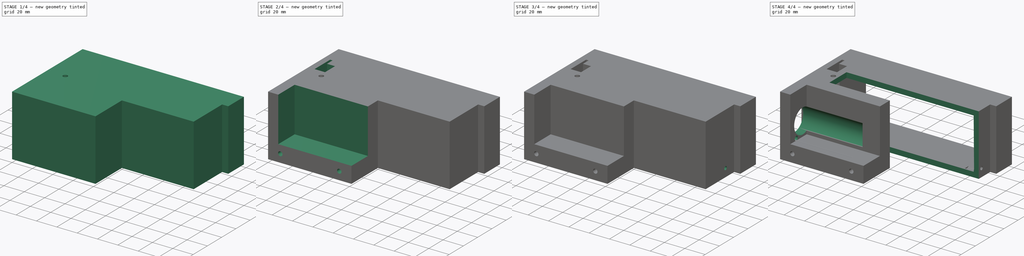
[diagram: build sequence overview — one tinted view per stage of 4, left to right]
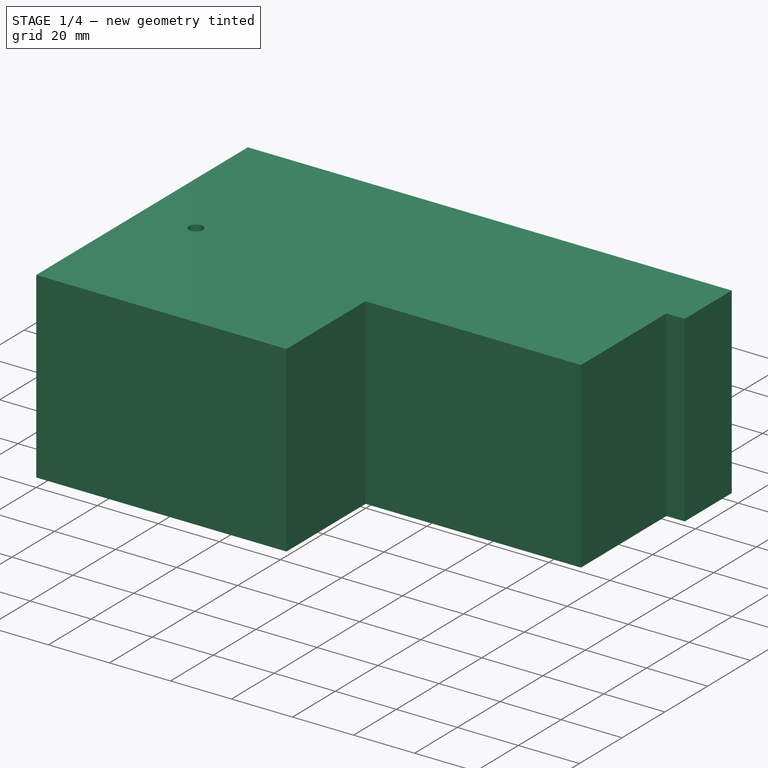
[diagram: stage 1 of 4 — iso view after this stage's code; geometry added in this stage tinted green]
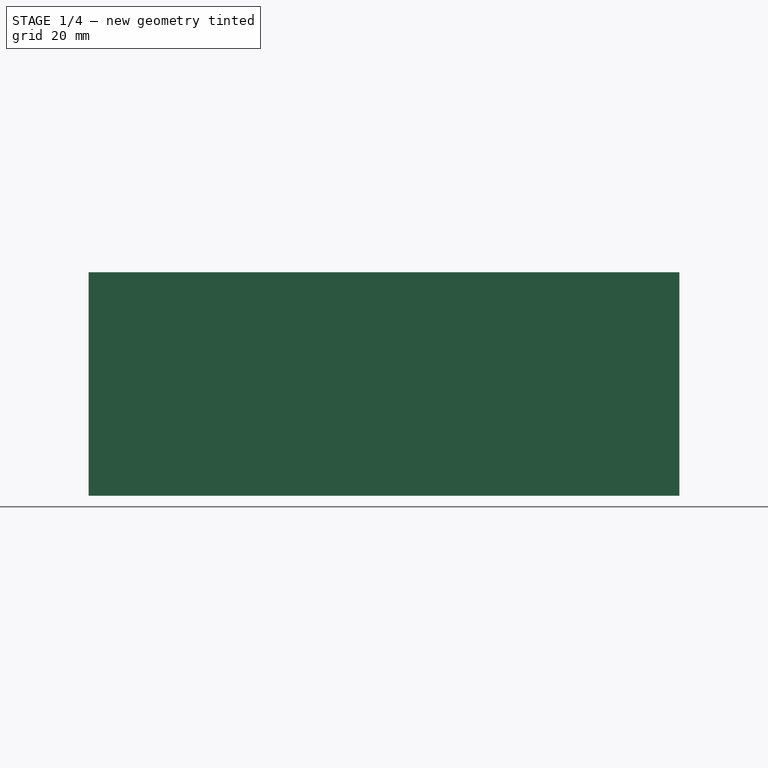
[diagram: stage 1 of 4 — front view after this stage's code; geometry added in this stage tinted green]
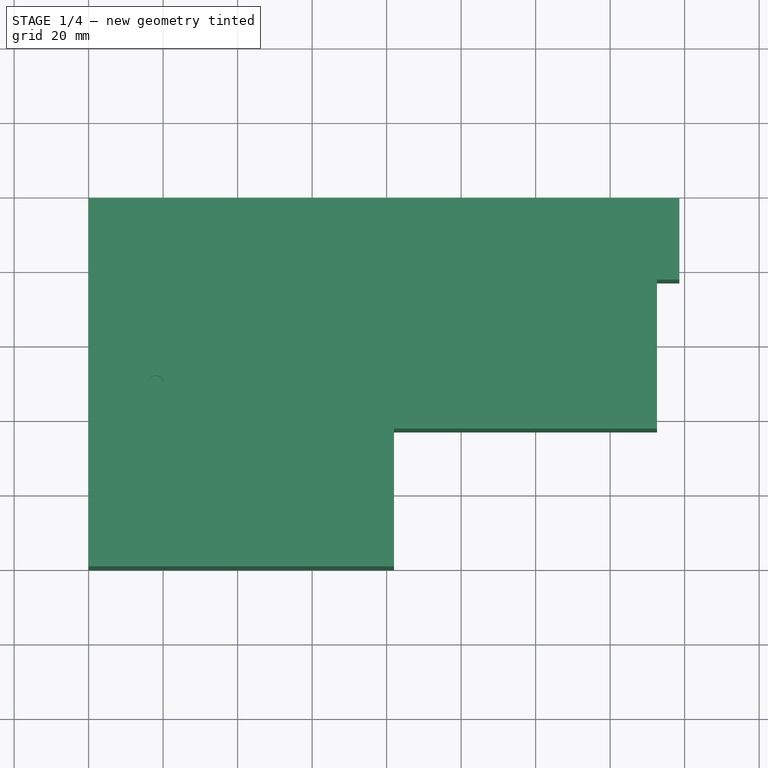
[diagram: stage 1 of 4 — top view after this stage's code; geometry added in this stage tinted green]
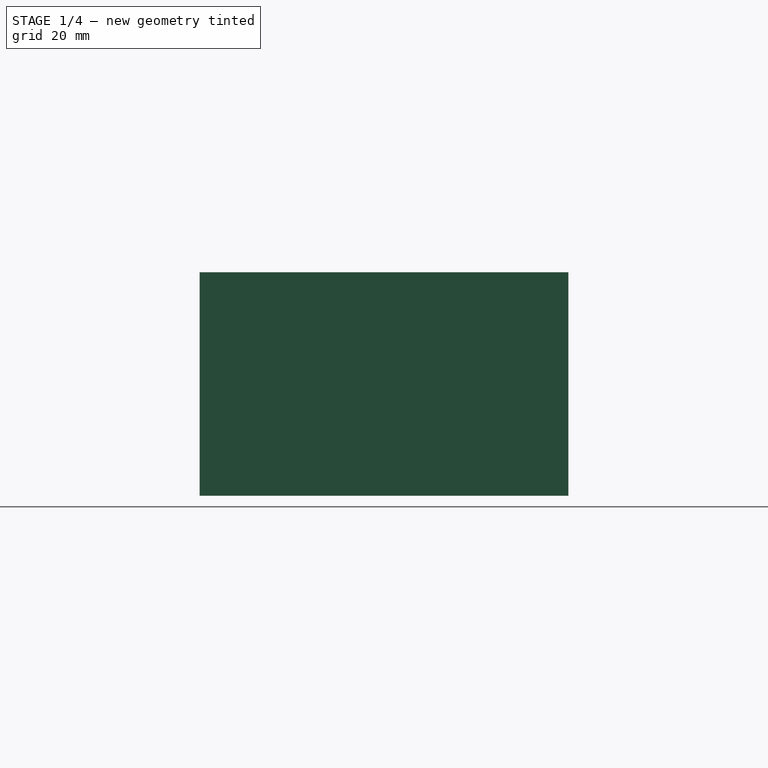
[diagram: stage 1 of 4 — right view after this stage's code; geometry added in this stage tinted green]
FCSTD DOCUMENT  (FreeCAD 0.21R33668 +7 (Git))
Label: speakerbox
License: All rights reserved
LicenseURL: http://en.wikipedia.org/wiki/All_rights_reserved
objects: Sketcher::SketchObject×12, PartDesign::Pocket×11, PartDesign::Plane×3, PartDesign::Pad×1, PartDesign::CoordinateSystem×1, PartDesign::Body×1, App::Part×1
note: 41 computed .brp shape members not serialized (recipe doc carries the construction recipe); baked Part::Feature solids carry a one-line shape summary decoded from their .brp
EXTERNAL_REF file=planB.FCStd obj=Spreadsheet

FEATURE [Sketcher::SketchObject] Sketch
  FullyConstrained = true
  MapMode = 5
  Support = -> [XY_Plane]
  expr: Constraints[13] = planB#<<data>>.central_h + planB#<<data>>.mungo_d + 2
  sketch-geometry (8):
    g0: LineSegment StartX=0 StartY=0 StartZ=0 EndX=82 EndY=0 EndZ=0
    g1: LineSegment StartX=158.6 StartY=99 StartZ=0 EndX=0 EndY=99 EndZ=0
    g2: LineSegment StartX=0 StartY=99 StartZ=0 EndX=0 EndY=0 EndZ=0
    g3: LineSegment StartX=82 StartY=0 StartZ=0 EndX=82 EndY=37 EndZ=0
    g4: LineSegment StartX=82 StartY=37 StartZ=0 EndX=152.6 EndY=37 EndZ=0
    g5: LineSegment StartX=152.6 StartY=37 StartZ=0 EndX=152.6 EndY=77 EndZ=0
    g6: LineSegment StartX=152.6 StartY=77 StartZ=0 EndX=158.6 EndY=77 EndZ=0
    g7: LineSegment StartX=158.6 StartY=77 StartZ=0 EndX=158.6 EndY=99 EndZ=0
  constraints (23):
    c: Coincident(g0,g3)
    c: Coincident(g7,g1)
    c: Coincident(g1,g2)
    c: Coincident(g2,g0)
    c: Horizontal(g0)
    c: Horizontal(g1)
    c: Vertical(g2)
    c: Coincident(g0,g-1)
    c: Coincident(g3,g4)
    c: Vertical(g3)
    c: Coincident(g4,g5)
    c: Horizontal(g4)
    c: Distance(g3) = 37
    c: Distance(g0) = 82
    c: DistanceX(g4) = 152.6
    c: Coincident(g5,g6)
    c: Vertical(g5)
    c: Coincident(g6,g7)
    c: Vertical(g7)
    c: Horizontal(g6)
    c: Distance(g6) = 6
    c: Distance(g7) = 22
    c: DistanceY(g2,g2) = 99
FEATURE [PartDesign::Pad] Pad
  Direction = (0,0,1)
  Length = 60
  Length2 = 10
  Profile = -> Sketch
  ReferenceAxis = -> Sketch [N_Axis]
  Type = 0
  expr: Length = planB#<<data>>.speaker_w
FEATURE [PartDesign::Plane] DatumPlane
  AttachmentOffset = pos=(0,0,5) rot=(0,0,1;0rad)
  Length = 60
  MapMode = 2
  Placement = pos=(0,0,5) rot=(0,0,1;0rad)
  ResizeMode = 0
  Support = -> [XY_Plane]
  Width = 60
  expr: .AttachmentOffset.Base.z = planB#<<data>>.base_t
FEATURE [Sketcher::SketchObject] Sketch001
  FullyConstrained = false
  MapMode = 5
  Placement = pos=(0,0,5) rot=(0,0,1;0rad)
  Support = -> [DatumPlane]
  expr: Constraints[7] = planB#<<data>>.base_t * 2
  expr: Constraints[8] = planB#<<data>>.base_t
  sketch-geometry (18):
    g0: LineSegment StartX=5 StartY=129.209 StartZ=0 EndX=153.6 EndY=129.209 EndZ=0
    g1: LineSegment StartX=77 StartY=42 StartZ=0 EndX=77 EndY=5 EndZ=0
    g2: LineSegment StartX=77 StartY=5 StartZ=0 EndX=10 EndY=5 EndZ=0
    g3: LineSegment StartX=153.6 StartY=129.209 StartZ=0 EndX=153.6 EndY=92 EndZ=0
    g4: LineSegment StartX=153.6 StartY=92 StartZ=0 EndX=143.6 EndY=92 EndZ=0
    g5: LineSegment StartX=5 StartY=92 StartZ=0 EndX=5 EndY=129.209 EndZ=0
    g6: LineSegment StartX=20 StartY=92 StartZ=0 EndX=5 EndY=92 EndZ=0
    g7: LineSegment StartX=10 StartY=52 StartZ=0 EndX=20 EndY=55 EndZ=0
    g8: LineSegment StartX=20 StartY=55 StartZ=0 EndX=20 EndY=92 EndZ=0
    g9: LineSegment StartX=147.6 StartY=82.69 StartZ=0 EndX=147.6 EndY=42 EndZ=0
    g10: LineSegment StartX=143.6 StartY=92 StartZ=0 EndX=143.6 EndY=85 EndZ=0
    g11: LineSegment StartX=143.6 StartY=85 StartZ=0 EndX=147.6 EndY=82.69 EndZ=0
    g12: LineSegment StartX=10 StartY=5 StartZ=0 EndX=10 EndY=42 EndZ=0
    g13: LineSegment StartX=10 StartY=42 StartZ=0 EndX=10 EndY=42 EndZ=0
    g14: LineSegment StartX=10 StartY=42 StartZ=0 EndX=77 EndY=42 EndZ=0
    g15: LineSegment StartX=77 StartY=42 StartZ=0 EndX=77 EndY=42 EndZ=0
    g16: LineSegment StartX=77 StartY=42 StartZ=0 EndX=147.6 EndY=42 EndZ=0
    g17: LineSegment StartX=10 StartY=42 StartZ=0 EndX=10 EndY=52 EndZ=0
  constraints (48):
    c: Coincident(g5,g0)
    c: Horizontal(g0)
    c: Coincident(g0,g3)
    c: Vertical(g1)
    c: Coincident(g1,g2)
    c: Coincident(g2,g12)
    c: Horizontal(g2)
    c: DistanceX(g12) = 10
    c: DistanceY(g12) = 5
    c: DistanceX(g1) = 77
    c: DistanceX(g9) = 147.6
    c: Coincident(g3,g4)
    c: Vertical(g3)
    c: Coincident(g4,g10)
    c: Horizontal(g4)
    c: Distance(g1) = 37
    c: Coincident(g6,g5)
    c: Vertical(g5)
    c: Coincident(g8,g6)
    c: Horizontal(g6)
    c: PointOnObject(g6,g4)
    c: Coincident(g7,g8)
    c: Distance(g8) = 37
    c: Vertical(g8)
    c: Coincident(g11,g9)
    c: Vertical(g9)
    c: Distance(g11,g3) = 6
    c: Distance(g4) = 10
    c: Coincident(g10,g11)
    c: Vertical(g10)
    c: Distance(g10) = 7
    c: Vertical(g12)
    c: DistanceX(g-2,g5) = 5
    c: DistanceX(g6,g6) = 15
    c: DistanceY(g9) = 82.69
    c: PointOnObject(g13,g12)
    c: Coincident(g13,g14)
    c: PointOnObject(g14,g1)
    c: Horizontal(g14)
    c: Coincident(g14,g15)
    c: Distance(g14,g2) = 37
    c: Coincident(g16,g15)
    c: Coincident(g16,g9)
    c: Horizontal(g16)
    c: Coincident(g17,g13)
    c: Coincident(g17,g7)
    c: Vertical(g17)
    c: Distance(g7,g6) = 40
FEATURE [PartDesign::Pocket] Pocket  label="hollow out"
  BaseFeature = -> Pad
  Direction = (0,0,-1)
  Length = 50
  Length2 = 5
  Profile = -> Sketch001
  ReferenceAxis = -> Sketch001 [N_Axis]
  Reversed = true
  Type = 0
  expr: Length = planB#<<data>>.speaker_w - 2 * planB#<<data>>.base_t
FEATURE [PartDesign::CoordinateSystem] LCS_0
  AttacherType = Attacher::AttachEngine3D
  MapMode = 2
  Support = -> [X_Axis001]
FEATURE [PartDesign::Plane] DatumPlane001
  AttachmentOffset = pos=(0,0,60) rot=(0,0,1;0rad)
  Length = 60
  MapMode = 5
  Placement = pos=(0,0,60) rot=(0,0,1;0rad)
  ResizeMode = 0
  Support = -> [XY_Plane]
  Width = 60
  expr: .AttachmentOffset.Base.z = planB#<<data>>.speaker_w
FEATURE [Sketcher::SketchObject] Sketch002
  FullyConstrained = false
  MapMode = 5
  Placement = pos=(0,0,60) rot=(0,0,1;0rad)
  Support = -> [DatumPlane001]
  expr: Constraints[0] = planB#<<data>>.clearance_m4
  expr: Constraints[16] = planB#<<data>>.L_thickness + 0.4 * 2
  expr: Constraints[17] = planB#<<data>>.L_size + 0.4 * 2
  expr: Constraints[18] = planB#<<data>>.L_size - planB#<<data>>.L_thickness
  sketch-geometry (11):
    g0: Circle CenterX=18 CenterY=49 CenterZ=0 NormalX=0 NormalY=0 NormalZ=1 AngleXU=0 Radius=2.25
    g1: LineSegment StartX=6 StartY=78.6 StartZ=0 EndX=6 EndY=56.7 EndZ=0
    g2: LineSegment StartX=6 StartY=56.7 StartZ=0 EndX=16.3 EndY=56.7 EndZ=0
    g3: LineSegment StartX=16.3 StartY=56.7 StartZ=0 EndX=16.3 EndY=70.7 EndZ=0
    g4: LineSegment StartX=16.3 StartY=70.7 StartZ=0 EndX=8.4 EndY=70.7 EndZ=0
    g5: LineSegment StartX=8.4 StartY=70.7 StartZ=0 EndX=8.4 EndY=78.6 EndZ=0
    g6: LineSegment StartX=8.4 StartY=78.6 StartZ=0 EndX=6 EndY=78.6 EndZ=0
    g7: ArcOfCircle CenterX=117.436 CenterY=40.4082 CenterZ=0 NormalX=0 NormalY=0 NormalZ=1 AngleXU=0 Radius=7.5 StartAngle=1.5708 EndAngle=4.71239
    g8: ArcOfCircle CenterX=137.436 CenterY=40.4082 CenterZ=0 NormalX=0 NormalY=0 NormalZ=1 AngleXU=0 Radius=7.5 StartAngle=4.71239 EndAngle=7.85398
    g9: LineSegment StartX=117.436 StartY=32.9082 StartZ=0 EndX=137.436 EndY=32.9082 EndZ=0
    g10: LineSegment StartX=137.436 StartY=47.9082 StartZ=0 EndX=117.436 EndY=47.9082 EndZ=0
  constraints (29):
    c: Diameter(g0) = 4.5
    c: Vertical(g1)
    c: Coincident(g1,g2)
    c: Horizontal(g2)
    c: Coincident(g2,g3)
    c: Vertical(g3)
    c: Coincident(g3,g4)
    c: Horizontal(g4)
    c: Coincident(g4,g5)
    c: Vertical(g5)
    c: Coincident(g5,g6)
    c: Coincident(g6,g1)
    c: Horizontal(g6)
    c: DistanceX(g0) = 18
    c: DistanceY(g0) = 49
    c: DistanceX(g1) = 6
    c: Distance(g6) = 2.4
    c: Distance(g2) = 10.3
    c: Distance(g5) = 7.9
    c: Distance(g3) = 14
    c: DistanceY(g1) = 78.6
    c: Tangent(g7,g9) = -1.5708
    c: Tangent(g9,g8) = -1.5708
    c: Tangent(g8,g10) = -1.5708
    c: Tangent(g10,g7) = -1.5708
    c: Equal(g7,g8)
    c: Horizontal(g9)
    c: Distance(g9) = 20
    c: Distance(g7,g10) = 15
FEATURE [PartDesign::Pocket] Pocket001  label="threaded rod, power outlet"
  BaseFeature = -> Pocket
  Direction = (0,0,-1)
  Length = 30
  Length2 = 5
  Profile = -> Sketch002
  ReferenceAxis = -> Sketch002 [N_Axis]
  Type = 0
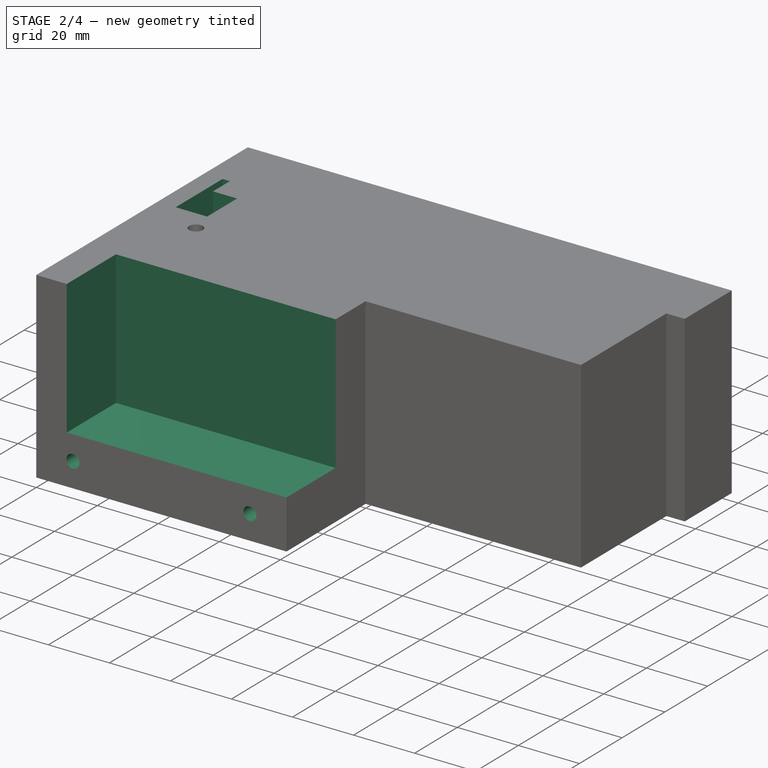
[diagram: stage 2 of 4 — iso view after this stage's code; geometry added in this stage tinted green]
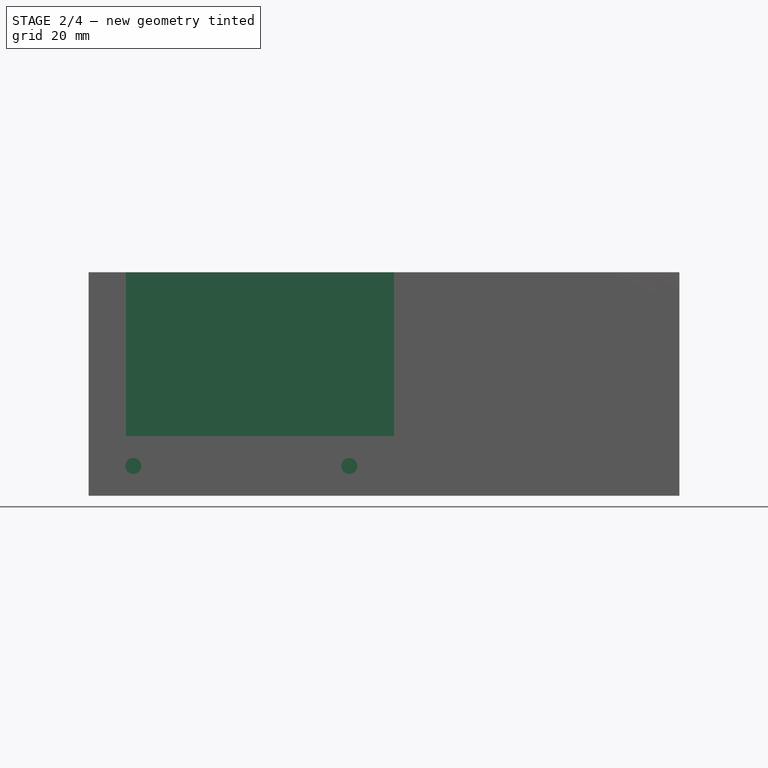
[diagram: stage 2 of 4 — front view after this stage's code; geometry added in this stage tinted green]
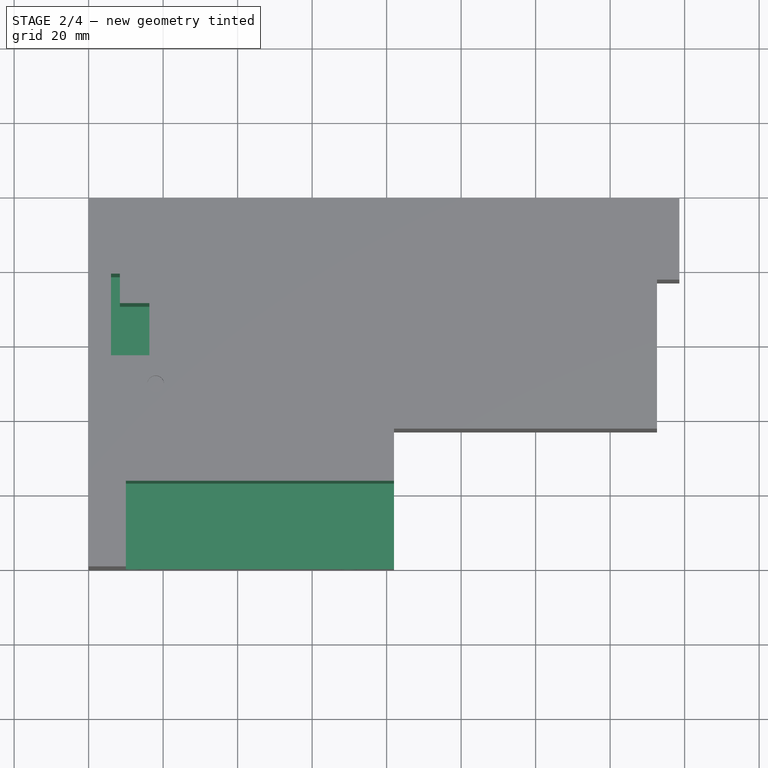
[diagram: stage 2 of 4 — top view after this stage's code; geometry added in this stage tinted green]
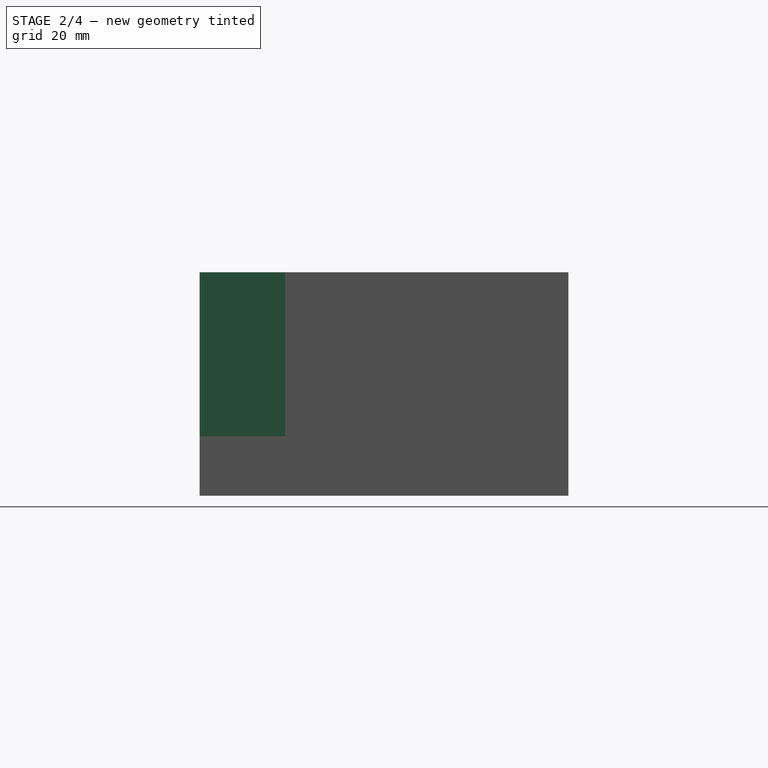
[diagram: stage 2 of 4 — right view after this stage's code; geometry added in this stage tinted green]
FEATURE [Sketcher::SketchObject] Sketch003
  FullyConstrained = false
  MapMode = 5
  Placement = pos=(0,0,60) rot=(0,0,1;0rad)
  Support = -> [DatumPlane001]
  sketch-geometry (4):
    g0: LineSegment StartX=10 StartY=0 StartZ=0 EndX=82.9999 EndY=0 EndZ=0
    g1: LineSegment StartX=82.9999 StartY=0 StartZ=0 EndX=82.9999 EndY=23 EndZ=0
    g2: LineSegment StartX=82.9999 StartY=23 StartZ=0 EndX=10 EndY=23 EndZ=0
    g3: LineSegment StartX=10 StartY=23 StartZ=0 EndX=10 EndY=0 EndZ=0
  constraints (11):
    c: Coincident(g0,g1)
    c: Coincident(g1,g2)
    c: Coincident(g2,g3)
    c: Coincident(g3,g0)
    c: Horizontal(g0)
    c: Horizontal(g2)
    c: Vertical(g1)
    c: Vertical(g3)
    c: Distance(g1) = 23
    c: PointOnObject(g0,g-1)
    c: DistanceX(g0) = 10
FEATURE [Sketcher::SketchObject] Sketch004
  FullyConstrained = true
  MapMode = 5
  Placement = pos=(0,0,0) rot=(1,0,0;1.5708rad)
  Support = -> [XZ_Plane]
  expr: Constraints[5] = planB#<<data>>.insert_diameter
  sketch-geometry (4):
    g0: Circle CenterX=12 CenterY=8 CenterZ=0 NormalX=0 NormalY=0 NormalZ=1 AngleXU=0 Radius=2.15
    g1: Circle CenterX=70 CenterY=8 CenterZ=0 NormalX=0 NormalY=0 NormalZ=1 AngleXU=0 Radius=2.15
    g2: LineSegment StartX=12 StartY=8 StartZ=0 EndX=70 EndY=8 EndZ=0
    g3: Circle CenterX=98 CenterY=8 CenterZ=0 NormalX=0 NormalY=0 NormalZ=1 AngleXU=0 Radius=2.15
  constraints (11):
    c: Coincident(g2,g0)
    c: Coincident(g2,g1)
    c: Horizontal(g2)
    c: DistanceY(g-1,g0) = 8
    c: Equal(g0,g1)
    c: Diameter(g1) = 4.3
    c: DistanceX(g0) = 12
    c: DistanceX(g1) = 70
    c: PointOnObject(g3,g2)
    c: Equal(g1,g3)
    c: DistanceX(g3) = 98
FEATURE [PartDesign::Plane] DatumPlane002
  AttachmentOffset = pos=(0,0,138) rot=(0,0,1;0rad)
  Length = 60
  MapMode = 5
  Placement = pos=(138,-3.06e-14,3.06e-14) rot=(0.57735,0.57735,0.57735;2.0944rad)
  ResizeMode = 0
  Support = -> [YZ_Plane]
  Width = 60
FEATURE [Sketcher::SketchObject] Sketch005
  FullyConstrained = true
  MapMode = 5
  Placement = pos=(138,-3.06e-14,3.06e-14) rot=(0.57735,0.57735,0.57735;2.0944rad)
  Support = -> [DatumPlane002]
  expr: Constraints[1] = planB#<<data>>.clearance_m3
  sketch-geometry (3):
    g0: Circle CenterX=35 CenterY=8 CenterZ=0 NormalX=0 NormalY=0 NormalZ=1 AngleXU=0 Radius=1.75
    g1: Circle CenterX=65 CenterY=8 CenterZ=0 NormalX=0 NormalY=0 NormalZ=1 AngleXU=0 Radius=1.75
    g2: LineSegment StartX=35 StartY=8 StartZ=0 EndX=65 EndY=8 EndZ=0
  constraints (8):
    c: Equal(g1,g0)
    c: Diameter(g1) = 3.5
    c: Coincident(g2,g0)
    c: Coincident(g2,g1)
    c: Horizontal(g2)
    c: DistanceY(g-1,g0) = 8
    c: DistanceX(g0) = 35
    c: DistanceX(g1) = 65
FEATURE [Sketcher::SketchObject] Sketch006
  FullyConstrained = true
  MapMode = 5
  Placement = pos=(138,-3.06e-14,3.06e-14) rot=(0.57735,0.57735,0.57735;2.0944rad)
  Support = -> [DatumPlane002]
  sketch-geometry (3):
    g0: Circle CenterX=35 CenterY=8 CenterZ=0 NormalX=0 NormalY=0 NormalZ=1 AngleXU=0 Radius=4
    g1: Circle CenterX=65 CenterY=8 CenterZ=0 NormalX=0 NormalY=0 NormalZ=1 AngleXU=0 Radius=4
    g2: LineSegment StartX=35 StartY=8 StartZ=0 EndX=65 EndY=8 EndZ=0
  constraints (8):
    c: Equal(g1,g0)
    c: Diameter(g1) = 8
    c: Coincident(g2,g0)
    c: Coincident(g2,g1)
    c: Horizontal(g2)
    c: DistanceY(g-1,g0) = 8
    c: DistanceX(g0) = 35
    c: DistanceX(g1) = 65
FEATURE [Sketcher::SketchObject] Sketch007
  FullyConstrained = true
  MapMode = 5
  Placement = pos=(0,0,0) rot=(0.57735,0.57735,0.57735;2.0944rad)
  Support = -> [YZ_Plane]
  sketch-geometry (15):
    g0: Circle CenterX=17.5 CenterY=30 CenterZ=0 NormalX=0 NormalY=0 NormalZ=1 AngleXU=0 Radius=12
    g1: LineSegment StartX=5 StartY=45.5 StartZ=0 EndX=30 EndY=45.5 EndZ=0
    g2: LineSegment StartX=30 StartY=45.5 StartZ=0 EndX=30 EndY=14.5 EndZ=0
    g3: LineSegment StartX=30 StartY=14.5 StartZ=0 EndX=5 EndY=14.5 EndZ=0
    g4: LineSegment StartX=5 StartY=14.5 StartZ=0 EndX=5 EndY=45.5 EndZ=0
    g5: Circle CenterX=26.5 CenterY=42 CenterZ=0 NormalX=0 NormalY=0 NormalZ=1 AngleXU=0 Radius=1.75
    g6: Circle CenterX=8.5 CenterY=18 CenterZ=0 NormalX=0 NormalY=0 NormalZ=1 AngleXU=0 Radius=1.75
    g7: LineSegment StartX=8.5 StartY=18 StartZ=0 EndX=5 EndY=18 EndZ=0
    g8: LineSegment StartX=5 StartY=18 StartZ=0 EndX=5 EndY=14.5 EndZ=0
    g9: LineSegment StartX=5 StartY=14.5 StartZ=0 EndX=8.5 EndY=14.5 EndZ=0
    g10: LineSegment StartX=8.5 StartY=14.5 StartZ=0 EndX=8.5 EndY=18 EndZ=0
    g11: LineSegment StartX=26.5 StartY=42 StartZ=0 EndX=30 EndY=42 EndZ=0
    g12: LineSegment StartX=30 StartY=42 StartZ=0 EndX=30 EndY=45.5 EndZ=0
    g13: LineSegment StartX=30 StartY=45.5 StartZ=0 EndX=26.5 EndY=45.5 EndZ=0
    g14: LineSegment StartX=26.5 StartY=45.5 StartZ=0 EndX=26.5 EndY=42 EndZ=0
  constraints (40):
    c: Coincident(g1,g2)
    c: Coincident(g3,g4)
    c: Horizontal(g1)
    c: Horizontal(g3)
    c: Vertical(g2)
    c: Vertical(g4)
    c: Symmetric(g2,g1,g0)
    c: DistanceX(g1,g1) = 25
    c: DistanceY(g2,g2) = 31
    c: Diameter(g0) = 24
    c: Equal(g6,g5)
    c: Diameter(g5) = 3.5
    c: Coincident(g7,g8)
    c: Coincident(g8,g9)
    c: Coincident(g9,g10)
    c: Coincident(g10,g7)
    c: Horizontal(g7)
    c: Horizontal(g9)
    c: Vertical(g8)
    c: Vertical(g10)
    c: Coincident(g7,g6)
    c: Coincident(g8,g3)
    c: Coincident(g11,g12)
    c: Coincident(g12,g13)
    c: Coincident(g13,g14)
    c: Coincident(g14,g11)
    c: Horizontal(g11)
    c: Horizontal(g13)
    c: Vertical(g12)
    c: Vertical(g14)
    c: Coincident(g11,g5)
    c: Coincident(g12,g1)
    c: Equal(g14,g11)
    c: Equal(g11,g7)
    c: Equal(g7,g10)
    c: Distance(g10) = 3.5
    c: Coincident(g1,g4)
    c: Coincident(g2,g3)
    c: DistanceY(g0) = 30
    c: DistanceX(g0) = 17.5
FEATURE [Sketcher::SketchObject] Sketch008
  FullyConstrained = true
  MapMode = 5
  Placement = pos=(0,0,0) rot=(0.57735,0.57735,0.57735;2.0944rad)
  Support = -> [YZ_Plane]
  expr: Constraints[11] = planB#<<data>>.insert_diameter
  sketch-geometry (15):
    g0: Circle CenterX=17.5 CenterY=30 CenterZ=0 NormalX=0 NormalY=0 NormalZ=1 AngleXU=0 Radius=12
    g1: LineSegment StartX=5 StartY=45.5 StartZ=0 EndX=30 EndY=45.5 EndZ=0
    g2: LineSegment StartX=30 StartY=45.5 StartZ=0 EndX=30 EndY=14.5 EndZ=0
    g3: LineSegment StartX=30 StartY=14.5 StartZ=0 EndX=5 EndY=14.5 EndZ=0
    g4: LineSegment StartX=5 StartY=14.5 StartZ=0 EndX=5 EndY=45.5 EndZ=0
    g5: Circle CenterX=26.5 CenterY=42 CenterZ=0 NormalX=0 NormalY=0 NormalZ=1 AngleXU=0 Radius=2.15
    g6: Circle CenterX=8.5 CenterY=18 CenterZ=0 NormalX=0 NormalY=0 NormalZ=1 AngleXU=0 Radius=2.15
    g7: LineSegment StartX=8.5 StartY=18 StartZ=0 EndX=5 EndY=18 EndZ=0
    g8: LineSegment StartX=5 StartY=18 StartZ=0 EndX=5 EndY=14.5 EndZ=0
    g9: LineSegment StartX=5 StartY=14.5 StartZ=0 EndX=8.5 EndY=14.5 EndZ=0
    g10: LineSegment StartX=8.5 StartY=14.5 StartZ=0 EndX=8.5 EndY=18 EndZ=0
    g11: LineSegment StartX=26.5 StartY=42 StartZ=0 EndX=30 EndY=42 EndZ=0
    g12: LineSegment StartX=30 StartY=42 StartZ=0 EndX=30 EndY=45.5 EndZ=0
    g13: LineSegment StartX=30 StartY=45.5 StartZ=0 EndX=26.5 EndY=45.5 EndZ=0
    g14: LineSegment StartX=26.5 StartY=45.5 StartZ=0 EndX=26.5 EndY=42 EndZ=0
  constraints (40):
    c: Coincident(g1,g2)
    c: Coincident(g3,g4)
    c: Horizontal(g1)
    c: Horizontal(g3)
    c: Vertical(g2)
    c: Vertical(g4)
    c: Symmetric(g2,g1,g0)
    c: DistanceX(g1,g1) = 25
    c: DistanceY(g2,g2) = 31
    c: Diameter(g0) = 24
    c: Equal(g6,g5)
    c: Diameter(g5) = 4.3
    c: Coincident(g7,g8)
    c: Coincident(g8,g9)
    c: Coincident(g9,g10)
    c: Coincident(g10,g7)
    c: Horizontal(g7)
    c: Horizontal(g9)
    c: Vertical(g8)
    c: Vertical(g10)
    c: Coincident(g7,g6)
    c: Coincident(g8,g3)
    c: Coincident(g11,g12)
    c: Coincident(g12,g13)
    c: Coincident(g13,g14)
    c: Coincident(g14,g11)
    c: Horizontal(g11)
    c: Horizontal(g13)
    c: Vertical(g12)
    c: Vertical(g14)
    c: Coincident(g11,g5)
    c: Coincident(g12,g1)
    c: Equal(g14,g11)
    c: Equal(g11,g7)
    c: Equal(g7,g10)
    c: Distance(g10) = 3.5
    c: Coincident(g1,g4)
    c: Coincident(g2,g3)
    c: DistanceY(g0) = 30
    c: DistanceX(g0) = 17.5
FEATURE [Sketcher::SketchObject] Sketch009
  FullyConstrained = true
  MapMode = 5
  Placement = pos=(0,0,60) rot=(0,0,1;0rad)
  Support = -> [DatumPlane001]
  expr: Constraints[13] = planB#<<data>>.L_thickness + 0.4 * 2
  expr: Constraints[14] = planB#<<data>>.L_size + 0.4 * 2
  expr: Constraints[15] = planB#<<data>>.L_size - planB#<<data>>.L_thickness
  sketch-geometry (6):
    g0: LineSegment StartX=6 StartY=78.6 StartZ=0 EndX=6 EndY=56.7 EndZ=0
    g1: LineSegment StartX=6 StartY=56.7 StartZ=0 EndX=16.3 EndY=56.7 EndZ=0
    g2: LineSegment StartX=16.3 StartY=56.7 StartZ=0 EndX=16.3 EndY=70.7 EndZ=0
    g3: LineSegment StartX=16.3 StartY=70.7 StartZ=0 EndX=8.4 EndY=70.7 EndZ=0
    g4: LineSegment StartX=8.4 StartY=70.7 StartZ=0 EndX=8.4 EndY=78.6 EndZ=0
    g5: LineSegment StartX=8.4 StartY=78.6 StartZ=0 EndX=6 EndY=78.6 EndZ=0
  constraints (18):
    c: Vertical(g0)
    c: Coincident(g0,g1)
    c: Horizontal(g1)
    c: Coincident(g1,g2)
    c: Vertical(g2)
    c: Coincident(g2,g3)
    c: Horizontal(g3)
    c: Coincident(g3,g4)
    c: Vertical(g4)
    c: Coincident(g4,g5)
    c: Coincident(g5,g0)
    c: Horizontal(g5)
    c: DistanceX(g0) = 6
    c: Distance(g5) = 2.4
    c: Distance(g1) = 10.3
    c: Distance(g4) = 7.9
    c: Distance(g2) = 14
    c: DistanceY(g0) = 78.6
FEATURE [PartDesign::Pocket] Pocket008  label="L hole"
  BaseFeature = -> Pocket001
  Direction = (0,0,-1)
  Length = 56
  Length2 = 5
  Profile = -> Sketch009
  ReferenceAxis = -> Sketch009 [N_Axis]
  Type = 0
FEATURE [PartDesign::Pocket] Pocket002  label="hollow for psu"
  BaseFeature = -> Pocket008
  Direction = (0,0,-1)
  Length = 44
  Length2 = 5
  Profile = -> Sketch003
  ReferenceAxis = -> Sketch003 [N_Axis]
  Type = 0
  expr: Length = planB#<<data>>.speaker_w - 16
FEATURE [PartDesign::Pocket] Pocket003  label="bottom screwholes"
  BaseFeature = -> Pocket002
  Direction = (0,1,2e-16)
  Length = 34
  Length2 = 5
  Profile = -> Sketch004
  ReferenceAxis = -> Sketch004 [N_Axis]
  Type = 0
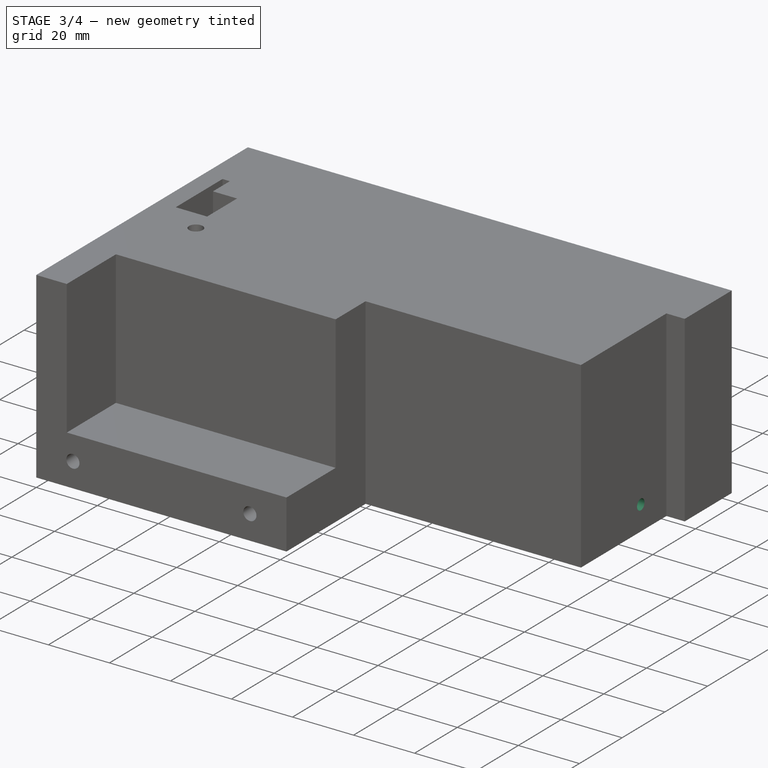
[diagram: stage 3 of 4 — iso view after this stage's code; geometry added in this stage tinted green]
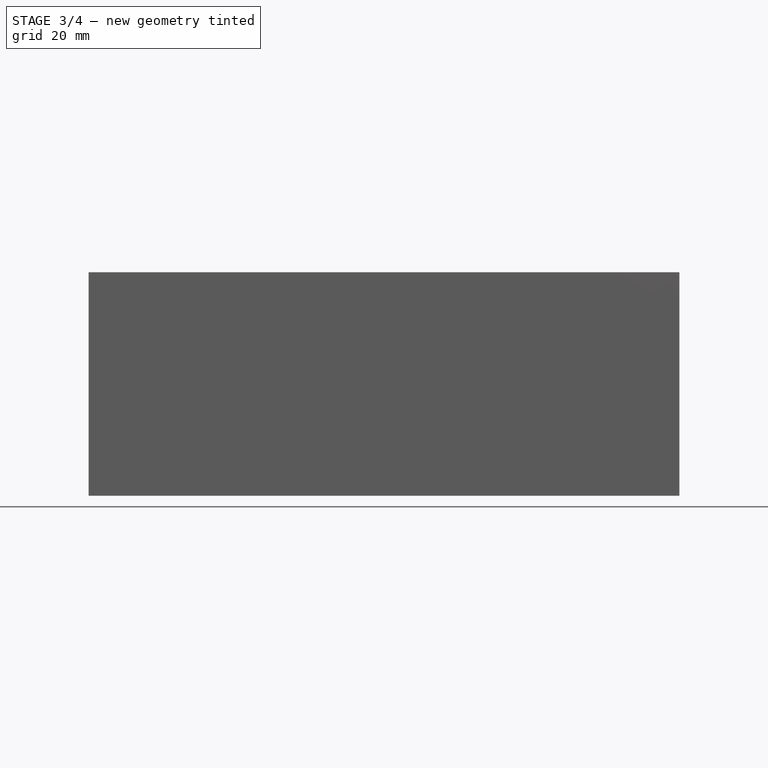
[diagram: stage 3 of 4 — front view after this stage's code; geometry added in this stage tinted green]
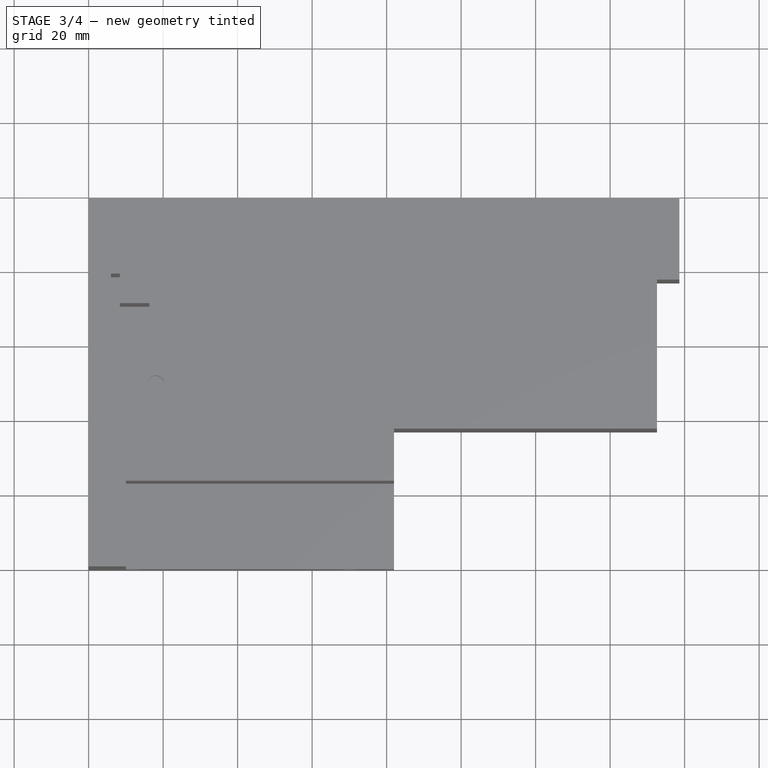
[diagram: stage 3 of 4 — top view after this stage's code; geometry added in this stage tinted green]
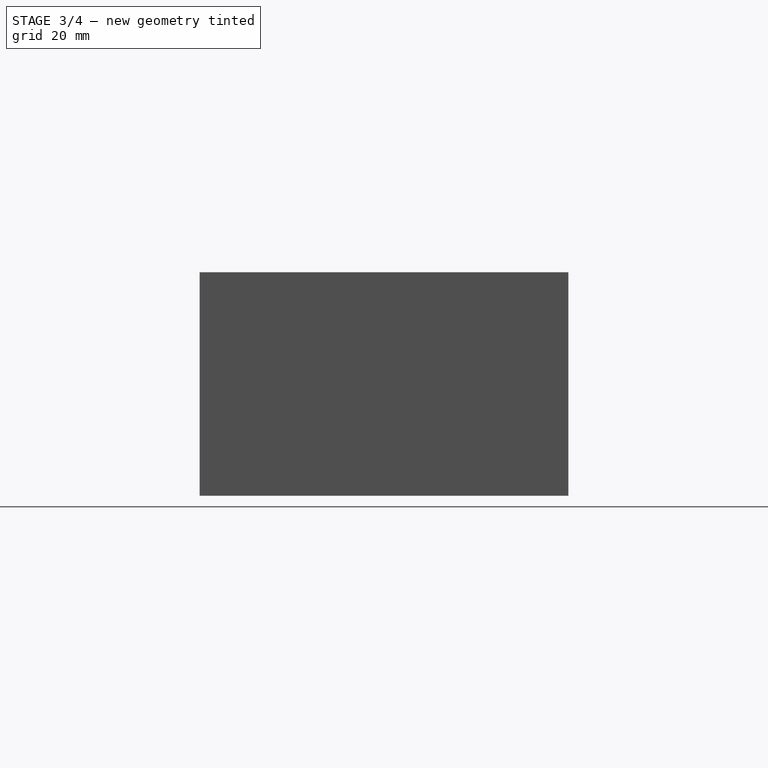
[diagram: stage 3 of 4 — right view after this stage's code; geometry added in this stage tinted green]
FEATURE [PartDesign::Pocket] Pocket004  label="side screwholes"
  BaseFeature = -> Pocket003
  Direction = (-1,1e-16,-1e-16)
  Length = 9
  Length2 = 5
  Profile = -> Sketch005
  ReferenceAxis = -> Sketch005 [N_Axis]
  Reversed = true
  Type = 1
FEATURE [PartDesign::Pocket] Pocket005
  BaseFeature = -> Pocket004
  Direction = (-1,1e-16,-1e-16)
  Length = 10
  Length2 = 5
  Profile = -> Sketch006
  ReferenceAxis = -> Sketch006 [N_Axis]
  Reversed = true
  Type = 0
FEATURE [PartDesign::Pocket] Pocket006  label="power socket outline"
  BaseFeature = -> Pocket005
  Direction = (-1,2e-16,-3e-16)
  Length = 2
  Length2 = 5
  Profile = -> Sketch007
  ReferenceAxis = -> Sketch007 [N_Axis]
  Reversed = true
  Type = 0
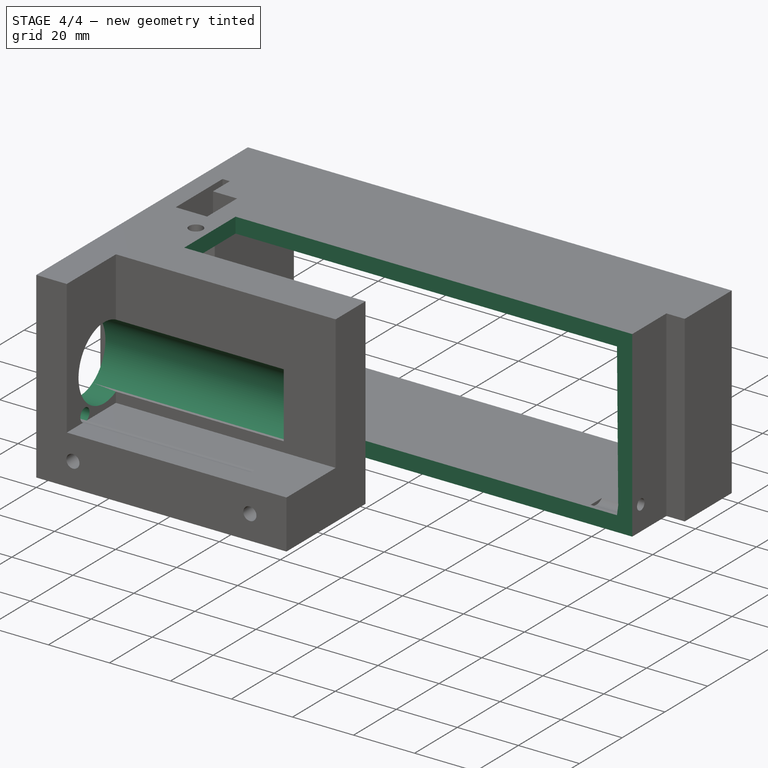
[diagram: stage 4 of 4 — iso view after this stage's code; geometry added in this stage tinted green]
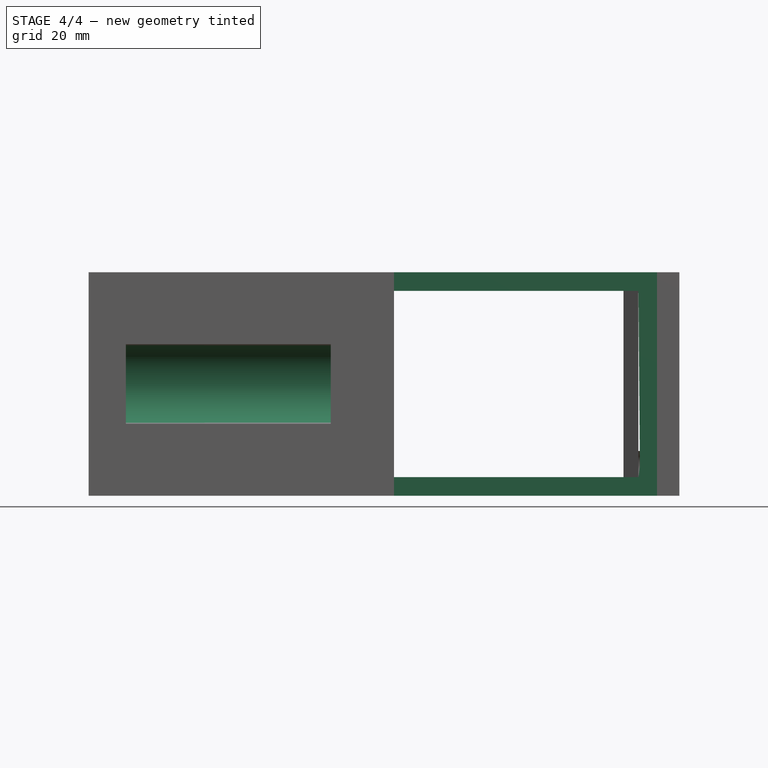
[diagram: stage 4 of 4 — front view after this stage's code; geometry added in this stage tinted green]
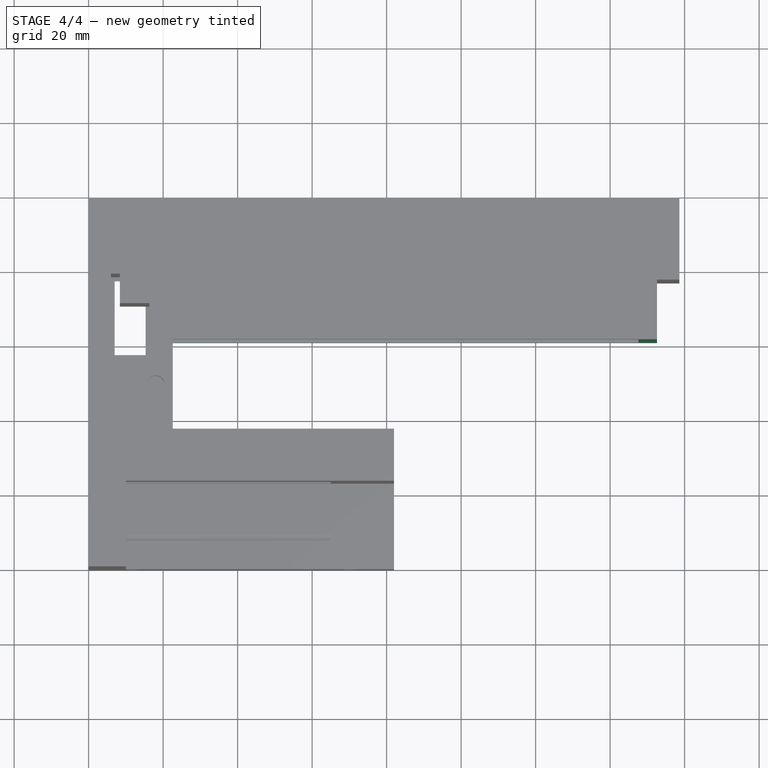
[diagram: stage 4 of 4 — top view after this stage's code; geometry added in this stage tinted green]
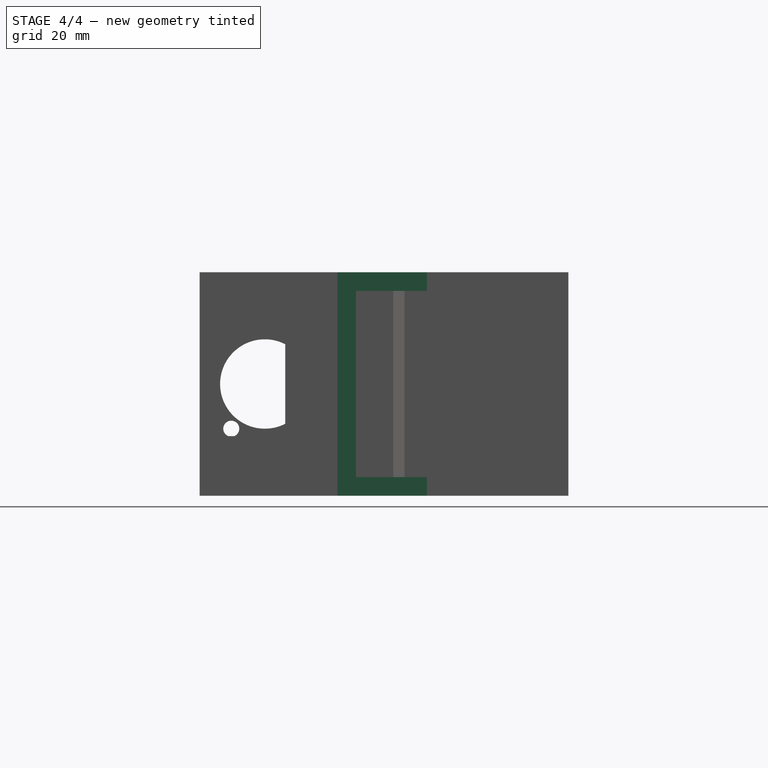
[diagram: stage 4 of 4 — right view after this stage's code; geometry added in this stage tinted green]
FEATURE [PartDesign::Pocket] Pocket007  label="power socket holes"
  BaseFeature = -> Pocket006
  Direction = (-1,2e-16,-3e-16)
  Length = 65
  Length2 = 5
  Profile = -> Sketch008
  ReferenceAxis = -> Sketch008 [N_Axis]
  Reversed = true
  Type = 0
FEATURE [Sketcher::SketchObject] Sketch010
  FullyConstrained = true
  MapMode = 5
  Support = -> [XY_Plane]
  sketch-geometry (4):
    g0: LineSegment StartX=7 StartY=77.6 StartZ=0 EndX=15.3 EndY=77.6 EndZ=0
    g1: LineSegment StartX=15.3 StartY=77.6 StartZ=0 EndX=15.3 EndY=57.7 EndZ=0
    g2: LineSegment StartX=15.3 StartY=57.7 StartZ=0 EndX=7 EndY=57.7 EndZ=0
    g3: LineSegment StartX=7 StartY=57.7 StartZ=0 EndX=7 EndY=77.6 EndZ=0
  constraints (12):
    c: Coincident(g0,g1)
    c: Coincident(g1,g2)
    c: Coincident(g2,g3)
    c: Coincident(g3,g0)
    c: Horizontal(g0)
    c: Horizontal(g2)
    c: Vertical(g1)
    c: Vertical(g3)
    c: DistanceX(g0) = 7
    c: DistanceX(g1) = 15.3
    c: DistanceY(g0) = 77.6
    c: DistanceY(g1) = 57.7
FEATURE [PartDesign::Pocket] Pocket009
  BaseFeature = -> Pocket007
  Direction = (0,0,-1)
  Length = 5
  Length2 = 5
  Profile = -> Sketch010
  ReferenceAxis = -> Sketch010 [N_Axis]
  Reversed = true
  Type = 0
FEATURE [Sketcher::SketchObject] Sketch011
  FullyConstrained = true
  MapMode = 5
  Support = -> [XY_Plane]
  expr: Constraints[8] = planB#<<data>>.rme_w + 2
  expr: Constraints[9] = planB#<<data>>.rme_h + 2
  sketch-geometry (4):
    g0: LineSegment StartX=152.6 StartY=37 StartZ=0 EndX=22.6 EndY=37 EndZ=0
    g1: LineSegment StartX=22.6 StartY=37 StartZ=0 EndX=22.6 EndY=61 EndZ=0
    g2: LineSegment StartX=22.6 StartY=61 StartZ=0 EndX=152.6 EndY=61 EndZ=0
    g3: LineSegment StartX=152.6 StartY=61 StartZ=0 EndX=152.6 EndY=37 EndZ=0
  constraints (12):
    c: Coincident(g0,g1)
    c: Coincident(g1,g2)
    c: Coincident(g2,g3)
    c: Coincident(g3,g0)
    c: Horizontal(g0)
    c: Horizontal(g2)
    c: Vertical(g1)
    c: Vertical(g3)
    c: DistanceX(g2,g2) = 130
    c: DistanceY(g1,g1) = 24
    c: DistanceX(g0) = 152.6
    c: DistanceY(g0) = 37
FEATURE [PartDesign::Pocket] Pocket010
  BaseFeature = -> Pocket009
  Direction = (0,0,-1)
  Length = 75
  Length2 = 5
  Profile = -> Sketch011
  ReferenceAxis = -> Sketch011 [N_Axis]
  Reversed = true
  Type = 0
FEATURE [PartDesign::Body] Body
  Group = -> [Sketch,Pad,DatumPlane,Sketch001,Pocket,DatumPlane001,Sketch002,Pocket001,Pocket008,Sketch003,Pocket002,Sketch004,Pocket003,DatumPlane002,Sketch005,Pocket004,Sketch006,Pocket005,Sketch007,Pocket006,Sketch008,Pocket007,Sketch009,Sketch010,Pocket009,Sketch011,Pocket010]
  Origin = -> Origin
  Tip = -> Pocket010
FEATURE [App::Part] speakerbox
  Group = -> [LCS_0,Body]
  Origin = -> Origin001
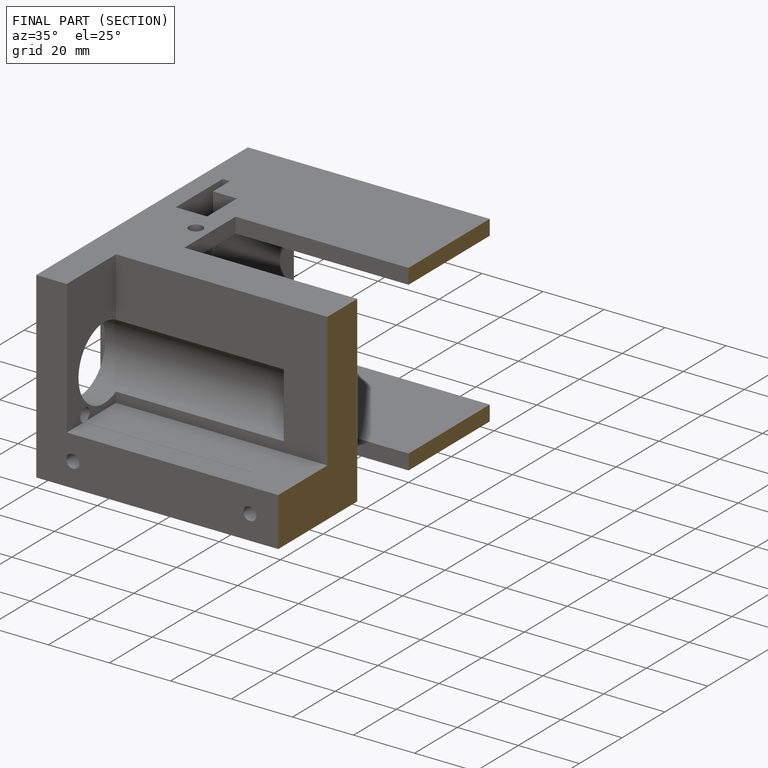
[diagram: finished part — half-section view (interior)]
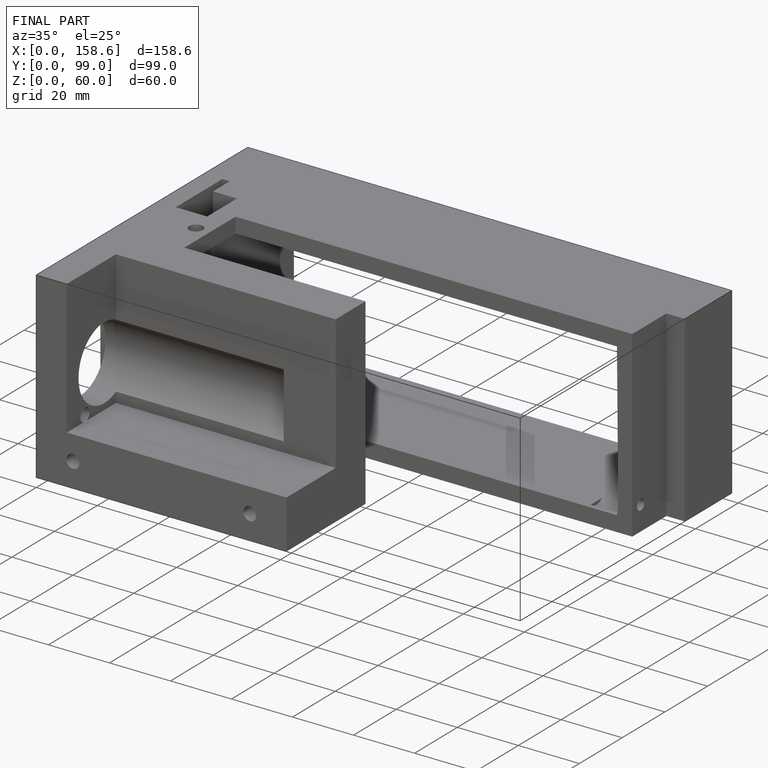
[diagram: finished part — iso view with bounding-box wireframe]
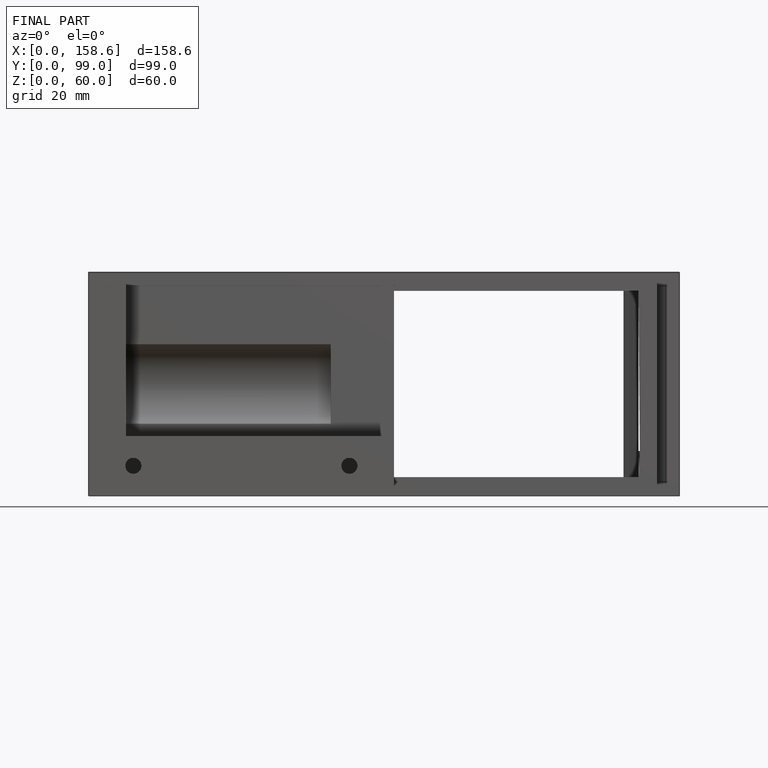
[diagram: finished part — front view with bounding-box wireframe]
